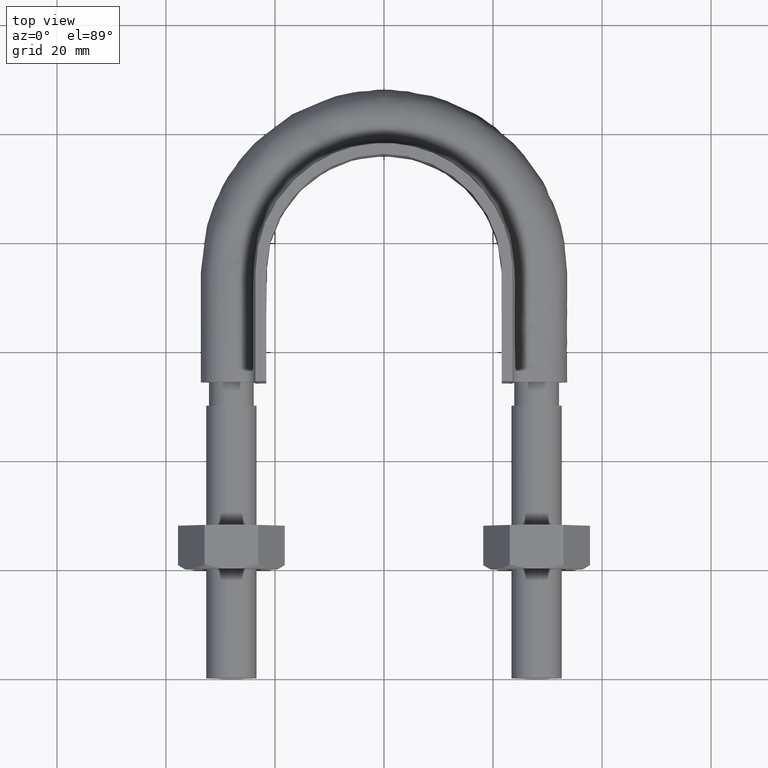
[diagram: clean part render]
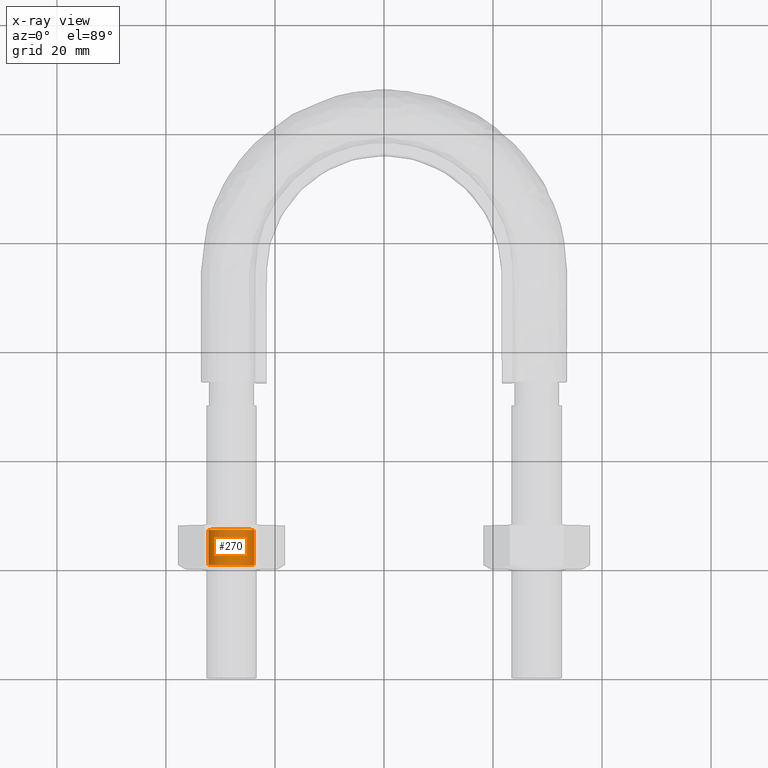
[diagram: x-ray — body ghosted, one internal face saturated and labeled with its STEP entity id]
A machine part, top view, then the same camera in x-ray: the body is ghosted and one INTERNAL B-rep face — a face not visible from any outside direction — is saturated and labeled: STEP entity #270.
In plain terms, the highlighted cylindrical surface (bore or boss wall) has radius 4.188 mm, axis along (-0, -1, -0).
Its self-contained STEP definition (entity closure, byte-faithful):
#270 = ADVANCED_FACE( '', ( #411, #412 ), #413, .F. );
#411 = FACE_OUTER_BOUND( '', #1408, .T. );
#412 = FACE_OUTER_BOUND( '', #1409, .T. );
#413 = CYLINDRICAL_SURFACE( '', #1410, 4.18800000000000 );
#1408 = EDGE_LOOP( '', ( #1820 ) );
#1409 = EDGE_LOOP( '', ( #1821 ) );
#1410 = AXIS2_PLACEMENT_3D( '', #1822, #1823, #1824 );
#1820 = ORIENTED_EDGE( '', *, *, #2102, .T. );
#1821 = ORIENTED_EDGE( '', *, *, #2101, .F. );
#1822 = CARTESIAN_POINT( '', ( -28.0000000000000, 28.0000000000000, 1.11228300875288E-015 ) );
#1823 = DIRECTION( '', ( -2.44921270764475E-016, -1.00000000000000, -6.12303176911189E-017 ) );
#1824 = DIRECTION( '', ( -0.866025403784439, 1.81492883563643E-016, 0.500000000000000 ) );
#2101 = EDGE_CURVE( '', #2315, #2315, #2316, .T. );
#2102 = EDGE_CURVE( '', #2317, #2317, #2318, .T. );
#2315 = VERTEX_POINT( '', #2894 );
#2316 = CIRCLE( '', #2895, 4.18800000000000 );
#2317 = VERTEX_POINT( '', #2896 );
#2318 = CIRCLE( '', #2897, 4.18800000000000 );
#2894 = CARTESIAN_POINT( '', ( -31.6269143910492, 20.8120000000000, 2.09400000000000 ) );
#2895 = AXIS2_PLACEMENT_3D( '', #3214, #3215, #3216 );
#2896 = CARTESIAN_POINT( '', ( -31.6269143910492, 27.1880000000000, 2.09400000000000 ) );
#2897 = AXIS2_PLACEMENT_3D( '', #3217, #3218, #3219 );
#3214 = CARTESIAN_POINT( '', ( -28.0000000000000, 20.8120000000000, 6.72159485189117E-016 ) );
#3215 = DIRECTION( '', ( 2.44921270764475E-016, 1.00000000000000, 6.12303176911189E-017 ) );
#3216 = DIRECTION( '', ( -0.866025403784439, 1.81492883563643E-016, 0.500000000000000 ) );
#3217 = CARTESIAN_POINT( '', ( -28.0000000000000, 27.1880000000000, 1.06256399078769E-015 ) );
#3218 = DIRECTION( '', ( 2.44921270764475E-016, 1.00000000000000, 6.12303176911189E-017 ) );
#3219 = DIRECTION( '', ( -0.866025403784439, 1.81492883563643E-016, 0.500000000000000 ) );